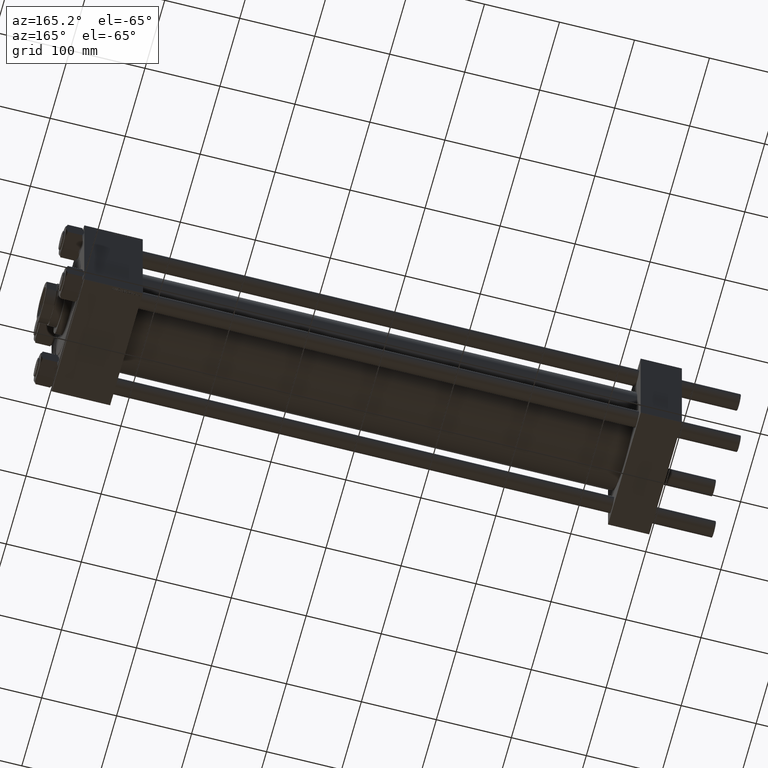
[diagram: clean part render]
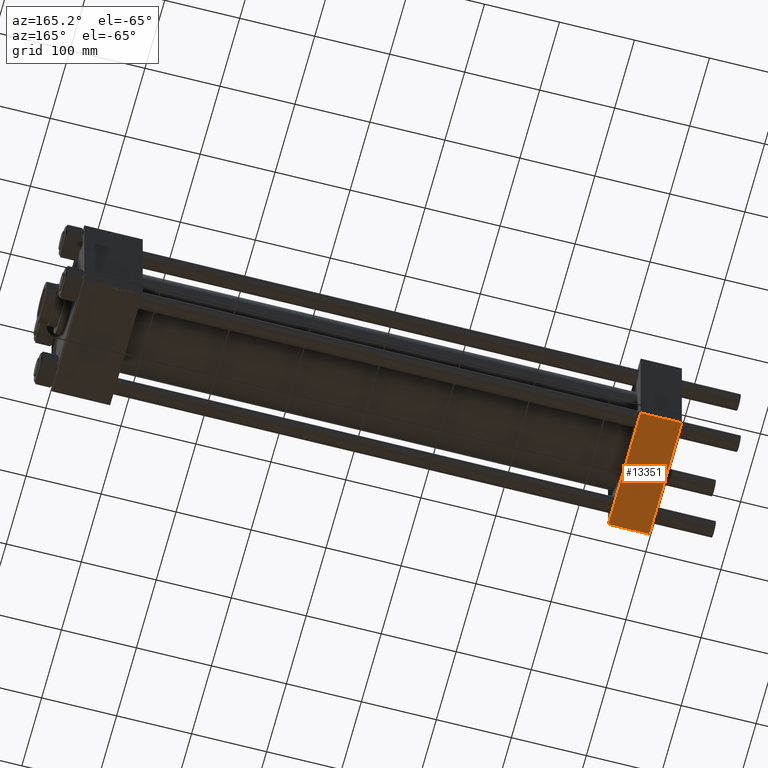
[diagram: same view with one face highlighted and labeled with its STEP entity id]
A machine part, auxiliary view. The second image highlights one B-rep face of the part: STEP entity #13351.
In plain terms, the highlighted planar face has unit normal (0, 0, -1).
Its self-contained STEP definition (entity closure, byte-faithful):
#1812 = CARTESIAN_POINT ( 'NONE',  ( 55.00000000000000000, -82.00000000000000000, -82.50000000000000000 ) ) ;
#2633 = EDGE_LOOP ( 'NONE', ( #29858, #23586, #42485, #30394 ) ) ;
#3174 = VECTOR ( 'NONE', #13657, 1000.000000000000000 ) ;
#7171 = EDGE_CURVE ( 'NONE', #31338, #35550, #35872, .T. ) ;
#7534 = EDGE_CURVE ( 'NONE', #31338, #12495, #21290, .T. ) ;
#8909 = CARTESIAN_POINT ( 'NONE',  ( 0.000000000000000000, 82.50000000000002842, -82.49999999999997158 ) ) ;
#9628 = LINE ( 'NONE', #14443, #46653 ) ;
#10383 = DIRECTION ( 'NONE',  ( 0.000000000000000000, -1.000000000000000000, -1.682156097916903588E-16 ) ) ;
#12495 = VERTEX_POINT ( 'NONE', #44369 ) ;
#13351 = ADVANCED_FACE ( 'NONE', ( #21987 ), #22499, .T. ) ;
#13657 = DIRECTION ( 'NONE',  ( 1.000000000000000000, 0.000000000000000000, 0.000000000000000000 ) ) ;
#13838 = CARTESIAN_POINT ( 'NONE',  ( 55.00000000000000000, 82.50000000000002842, -82.49999999999997158 ) ) ;
#14443 = CARTESIAN_POINT ( 'NONE',  ( 55.00000000000000000, 82.50000000000002842, -82.49999999999997158 ) ) ;
#20617 = VECTOR ( 'NONE', #48014, 1000.000000000000000 ) ;
#21290 = LINE ( 'NONE', #43923, #3174 ) ;
#21987 = FACE_OUTER_BOUND ( 'NONE', #2633, .T. ) ;
#22064 = AXIS2_PLACEMENT_3D ( 'NONE', #13838, #25573, #25823 ) ;
#22499 = PLANE ( 'NONE',  #22064 ) ;
#23586 = ORIENTED_EDGE ( 'NONE', *, *, #7534, .T. ) ;
#25573 = DIRECTION ( 'NONE',  ( 0.000000000000000000, 1.682156097916903588E-16, -1.000000000000000000 ) ) ;
#25823 = DIRECTION ( 'NONE',  ( 0.000000000000000000, 1.000000000000000000, 1.682156097916903588E-16 ) ) ;
#26895 = VERTEX_POINT ( 'NONE', #1812 ) ;
#28456 = LINE ( 'NONE', #43950, #20617 ) ;
#29659 = CARTESIAN_POINT ( 'NONE',  ( 0.000000000000000000, 82.00000000000005684, -82.49999999999997158 ) ) ;
#29858 = ORIENTED_EDGE ( 'NONE', *, *, #7171, .F. ) ;
#30394 = ORIENTED_EDGE ( 'NONE', *, *, #44426, .T. ) ;
#31338 = VERTEX_POINT ( 'NONE', #29659 ) ;
#35550 = VERTEX_POINT ( 'NONE', #43814 ) ;
#35872 = LINE ( 'NONE', #8909, #44602 ) ;
#39189 = DIRECTION ( 'NONE',  ( 0.000000000000000000, -1.000000000000000000, -1.682156097916903588E-16 ) ) ;
#42485 = ORIENTED_EDGE ( 'NONE', *, *, #45393, .T. ) ;
#43814 = CARTESIAN_POINT ( 'NONE',  ( 0.000000000000000000, -82.00000000000000000, -82.50000000000000000 ) ) ;
#43923 = CARTESIAN_POINT ( 'NONE',  ( 55.00000000000000000, 82.00000000000005684, -82.49999999999997158 ) ) ;
#43950 = CARTESIAN_POINT ( 'NONE',  ( 0.000000000000000000, -82.00000000000000000, -82.50000000000000000 ) ) ;
#44369 = CARTESIAN_POINT ( 'NONE',  ( 55.00000000000000000, 82.00000000000005684, -82.49999999999997158 ) ) ;
#44426 = EDGE_CURVE ( 'NONE', #26895, #35550, #28456, .T. ) ;
#44602 = VECTOR ( 'NONE', #39189, 1000.000000000000000 ) ;
#45393 = EDGE_CURVE ( 'NONE', #12495, #26895, #9628, .T. ) ;
#46653 = VECTOR ( 'NONE', #10383, 1000.000000000000000 ) ;
#48014 = DIRECTION ( 'NONE',  ( -1.000000000000000000, 0.000000000000000000, 0.000000000000000000 ) ) ;